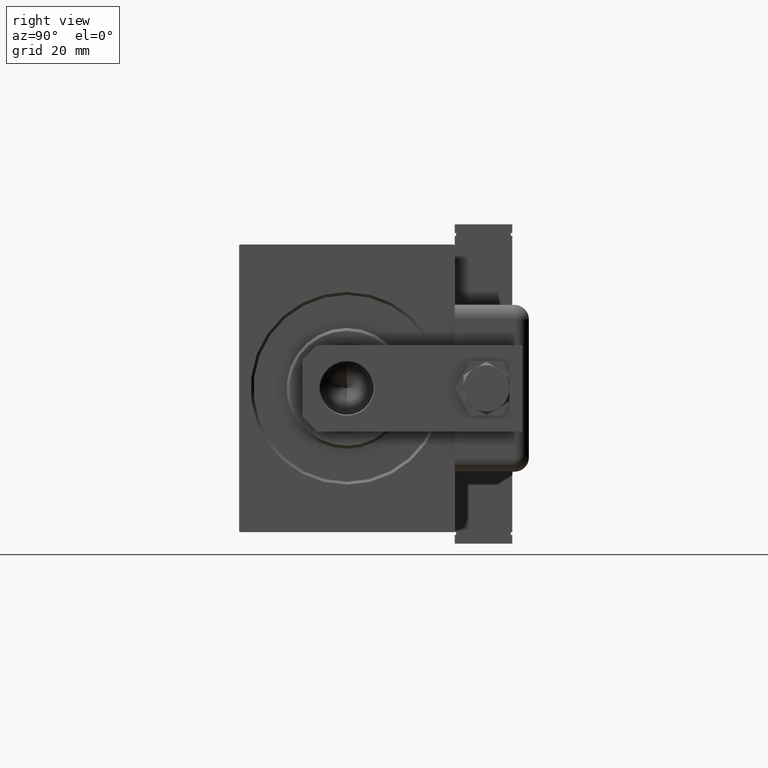
[diagram: clean part render]
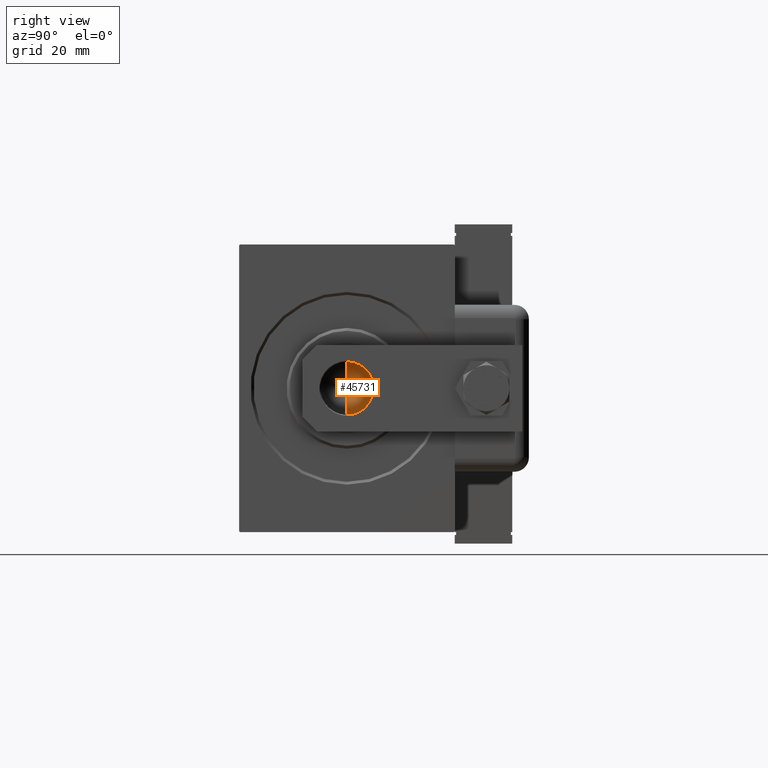
[diagram: same view with one face highlighted and labeled with its STEP entity id]
A machine part, right view. The second image highlights one B-rep face of the part: STEP entity #45731.
In plain terms, the highlighted conical surface has half-angle 59 deg.
Its self-contained STEP definition (entity closure, byte-faithful):
#1376 = EDGE_LOOP ( 'NONE', ( #48715, #16167, #2431 ) ) ;
#2431 = ORIENTED_EDGE ( 'NONE', *, *, #17074, .T. ) ;
#5109 = DIRECTION ( 'NONE',  ( 1.000000000000000000, 0.000000000000000000, 0.000000000000000000 ) ) ;
#5305 = EDGE_CURVE ( 'NONE', #26009, #9479, #37180, .T. ) ;
#6405 = DIRECTION ( 'NONE',  ( 1.000000000000000000, 0.000000000000000000, 0.000000000000000000 ) ) ;
#9479 = VERTEX_POINT ( 'NONE', #46749 ) ;
#10736 = DIRECTION ( 'NONE',  ( -0.000000000000000000, -0.000000000000000000, 1.000000000000000000 ) ) ;
#13943 = CONICAL_SURFACE ( 'NONE', #21513, 9.249999999999994671, 1.029744258676652535 ) ;
#14297 = DIRECTION ( 'NONE',  ( -0.8571673007021113344, 1.049727191138617463E-16, 0.5150380749100558209 ) ) ;
#14622 = DIRECTION ( 'NONE',  ( 0.8571673007021113344, 0.000000000000000000, 0.5150380749100558209 ) ) ;
#16167 = ORIENTED_EDGE ( 'NONE', *, *, #5305, .T. ) ;
#17074 = EDGE_CURVE ( 'NONE', #9479, #54617, #34352, .T. ) ;
#21513 = AXIS2_PLACEMENT_3D ( 'NONE', #51360, #10736, #5109 ) ;
#22240 = CARTESIAN_POINT ( 'NONE',  ( -6.793016015247754405E-15, 0.000000000000000000, 120.4420392739950785 ) ) ;
#24871 = AXIS2_PLACEMENT_3D ( 'NONE', #50898, #46432, #6405 ) ;
#26009 = VERTEX_POINT ( 'NONE', #22240 ) ;
#29922 = VECTOR ( 'NONE', #14622, 1000.000000000000000 ) ;
#30366 = LINE ( 'NONE', #48716, #32072 ) ;
#32072 = VECTOR ( 'NONE', #14297, 1000.000000000000000 ) ;
#33904 = CARTESIAN_POINT ( 'NONE',  ( 9.249999999999994671, 0.000000000000000000, 126.0000000000000284 ) ) ;
#34352 = CIRCLE ( 'NONE', #24871, 9.249999999999994671 ) ;
#34755 = CARTESIAN_POINT ( 'NONE',  ( -9.249999999999994671, 1.132798289211300909E-15, 126.0000000000000284 ) ) ;
#37180 = LINE ( 'NONE', #33904, #29922 ) ;
#45731 = ADVANCED_FACE ( 'NONE', ( #46311 ), #13943, .F. ) ;
#46311 = FACE_OUTER_BOUND ( 'NONE', #1376, .T. ) ;
#46432 = DIRECTION ( 'NONE',  ( -0.000000000000000000, -0.000000000000000000, 1.000000000000000000 ) ) ;
#46749 = CARTESIAN_POINT ( 'NONE',  ( 9.249999999999994671, 0.000000000000000000, 126.0000000000000284 ) ) ;
#48715 = ORIENTED_EDGE ( 'NONE', *, *, #48995, .F. ) ;
#48716 = CARTESIAN_POINT ( 'NONE',  ( -9.249999999999994671, 1.132798289211300909E-15, 126.0000000000000284 ) ) ;
#48995 = EDGE_CURVE ( 'NONE', #26009, #54617, #30366, .T. ) ;
#50898 = CARTESIAN_POINT ( 'NONE',  ( 0.000000000000000000, 0.000000000000000000, 126.0000000000000284 ) ) ;
#51360 = CARTESIAN_POINT ( 'NONE',  ( 0.000000000000000000, 0.000000000000000000, 126.0000000000000284 ) ) ;
#54617 = VERTEX_POINT ( 'NONE', #34755 ) ;